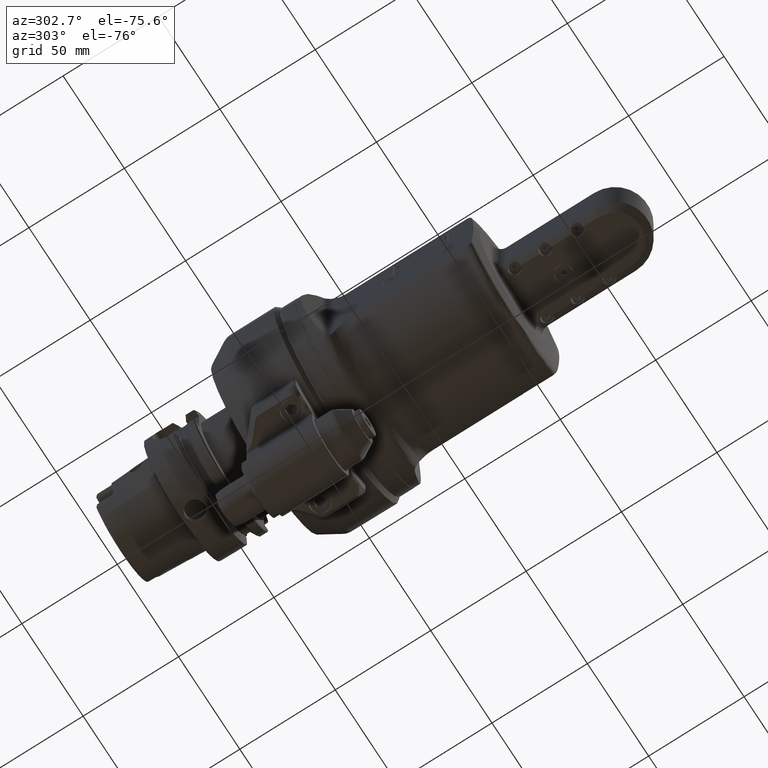
[diagram: clean part render]
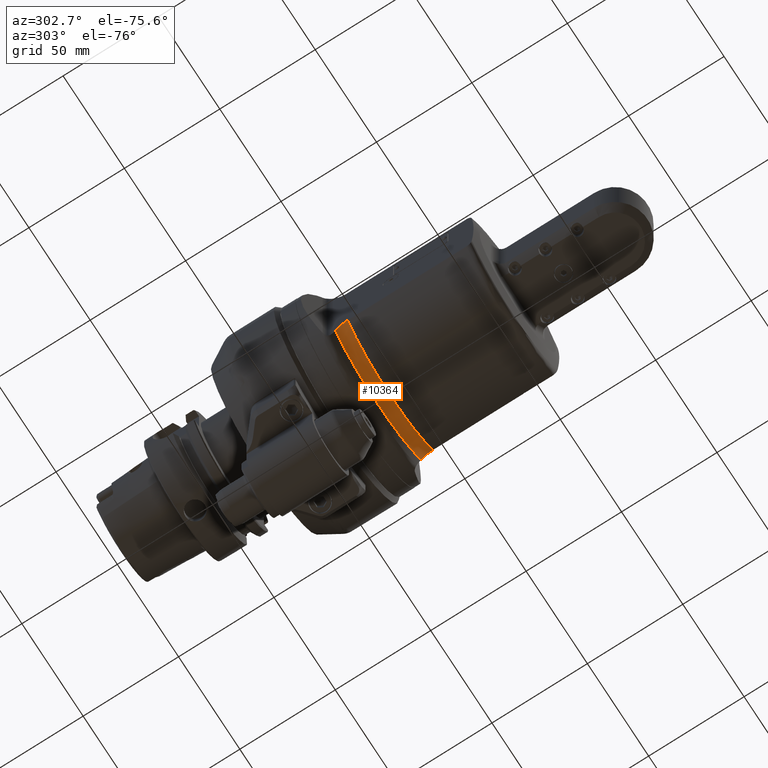
[diagram: same view with one face highlighted and labeled with its STEP entity id]
A machine part, auxiliary view. The second image highlights one B-rep face of the part: STEP entity #10364.
In plain terms, the highlighted toroidal blend (fillet) surface has major radius 51.5 mm and minor (blend) radius 9 mm.
Its self-contained STEP definition (entity closure, byte-faithful):
#173=TOROIDAL_SURFACE('',#11202,51.5,9.);
#363=B_SPLINE_CURVE_WITH_KNOTS('',3,(#15098,#15099,#15100,#15101,#15102,
#15103,#15104,#15105,#15106,#15107,#15108,#15109),.UNSPECIFIED.,.F.,.F.,
(4,2,2,2,2,4),(-3.21349613324655,-3.07949233485641,-2.93095062776314,-2.73720136147643,
-2.54345209518972,-2.45139973432646),.UNSPECIFIED.);
#426=B_SPLINE_CURVE_WITH_KNOTS('',3,(#16806,#16807,#16808,#16809,#16810,
#16811,#16812,#16813,#16814,#16815,#16816,#16817),.UNSPECIFIED.,.F.,.F.,
(4,2,2,2,2,4),(3.21349613324655,3.34749993163669,3.49604163872995,3.68979090501666,
3.88354017130337,3.97559236173987),.UNSPECIFIED.);
#645=CIRCLE('',#10886,42.5);
#778=CIRCLE('',#11193,45.13379527248);
#1459=FACE_OUTER_BOUND('',#2112,.T.);
#2112=EDGE_LOOP('',(#7641,#7642,#7643,#7644));
#4093=VERTEX_POINT('',#15040);
#4101=VERTEX_POINT('',#15094);
#4109=VERTEX_POINT('',#15126);
#4399=VERTEX_POINT('',#16770);
#5147=EDGE_CURVE('',#4093,#4101,#363,.T.);
#5156=EDGE_CURVE('',#4109,#4093,#645,.T.);
#5593=EDGE_CURVE('',#4101,#4399,#778,.T.);
#5601=EDGE_CURVE('',#4109,#4399,#426,.T.);
#7641=ORIENTED_EDGE('',*,*,#5156,.T.);
#7642=ORIENTED_EDGE('',*,*,#5147,.T.);
#7643=ORIENTED_EDGE('',*,*,#5593,.T.);
#7644=ORIENTED_EDGE('',*,*,#5601,.F.);
#10364=ADVANCED_FACE('',(#1459),#173,.F.);
#10886=AXIS2_PLACEMENT_3D('',#15127,#12062,#12063);
#11193=AXIS2_PLACEMENT_3D('',#16774,#12869,#12870);
#11202=AXIS2_PLACEMENT_3D('',#16834,#12894,#12895);
#12062=DIRECTION('center_axis',(-1.,0.,0.));
#12063=DIRECTION('ref_axis',(0.,1.,0.));
#12869=DIRECTION('center_axis',(1.,0.,0.));
#12870=DIRECTION('ref_axis',(0.,1.,0.));
#12894=DIRECTION('center_axis',(1.,0.,0.));
#12895=DIRECTION('ref_axis',(0.,1.,1.22464679914735E-16));
#15040=CARTESIAN_POINT('',(100.2306483738,24.10912690248,-35.));
#15094=CARTESIAN_POINT('',(93.8689317476396,28.4966574560073,-34.9999999582689));
#15098=CARTESIAN_POINT('Ctrl Pts',(100.2306483738,24.1091269024824,-35.));
#15099=CARTESIAN_POINT('Ctrl Pts',(99.7839690458329,24.1091269024824,-35.));
#15100=CARTESIAN_POINT('Ctrl Pts',(99.253263135215,24.1843832919984,-35.));
#15101=CARTESIAN_POINT('Ctrl Pts',(98.3457770780852,24.4363572262594,-35.));
#15102=CARTESIAN_POINT('Ctrl Pts',(97.8010925496165,24.673745061638,-35.));
#15103=CARTESIAN_POINT('Ctrl Pts',(96.8130250457607,25.24430176017,-35.));
#15104=CARTESIAN_POINT('Ctrl Pts',(96.2538863480957,25.673981849847,-35.));
#15105=CARTESIAN_POINT('Ctrl Pts',(95.2393113399098,26.6477712329798,-35.));
#15106=CARTESIAN_POINT('Ctrl Pts',(94.7826253605169,27.1905776804631,-35.));
#15107=CARTESIAN_POINT('Ctrl Pts',(94.2207761413707,27.9599342733135,-35.));
#15108=CARTESIAN_POINT('Ctrl Pts',(94.0420961966576,28.222588100373,-35.));
#15109=CARTESIAN_POINT('Ctrl Pts',(93.8689317244909,28.4966574413813,-35.));
#15126=CARTESIAN_POINT('',(100.2306483738,24.10912690248,35.));
#15127=CARTESIAN_POINT('Origin',(100.2306483738,0.,0.));
#16770=CARTESIAN_POINT('',(93.8689325010276,28.4966558019939,35.0000003341137));
#16774=CARTESIAN_POINT('Origin',(93.86893183129,0.,0.));
#16806=CARTESIAN_POINT('Ctrl Pts',(100.2306483738,24.1091269024824,35.));
#16807=CARTESIAN_POINT('Ctrl Pts',(99.7839690458329,24.1091269024824,35.));
#16808=CARTESIAN_POINT('Ctrl Pts',(99.253263135215,24.1843832919984,35.));
#16809=CARTESIAN_POINT('Ctrl Pts',(98.3457770780852,24.4363572262594,35.));
#16810=CARTESIAN_POINT('Ctrl Pts',(97.8010925496165,24.673745061638,35.));
#16811=CARTESIAN_POINT('Ctrl Pts',(96.8130250457607,25.24430176017,35.));
#16812=CARTESIAN_POINT('Ctrl Pts',(96.2538863480957,25.673981849847,35.));
#16813=CARTESIAN_POINT('Ctrl Pts',(95.2393113399098,26.6477712329798,35.));
#16814=CARTESIAN_POINT('Ctrl Pts',(94.7826253605169,27.1905776804632,35.));
#16815=CARTESIAN_POINT('Ctrl Pts',(94.2207764764078,27.9599338145374,35.));
#16816=CARTESIAN_POINT('Ctrl Pts',(94.0420968580448,28.2225871275991,35.));
#16817=CARTESIAN_POINT('Ctrl Pts',(93.8689326863278,28.4966559190716,35.));
#16834=CARTESIAN_POINT('Origin',(100.2306483738,0.,0.));